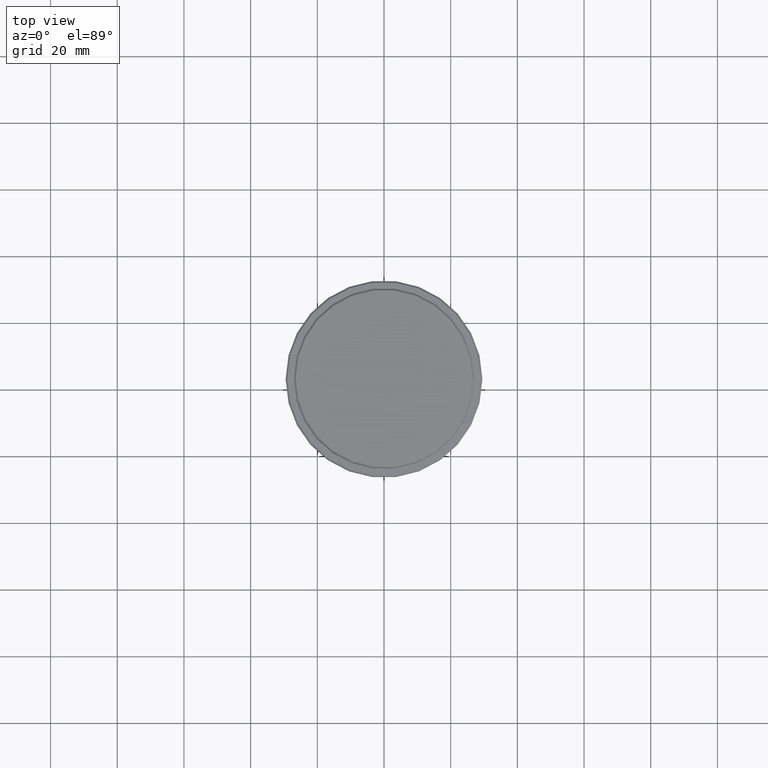
[diagram: clean part render]
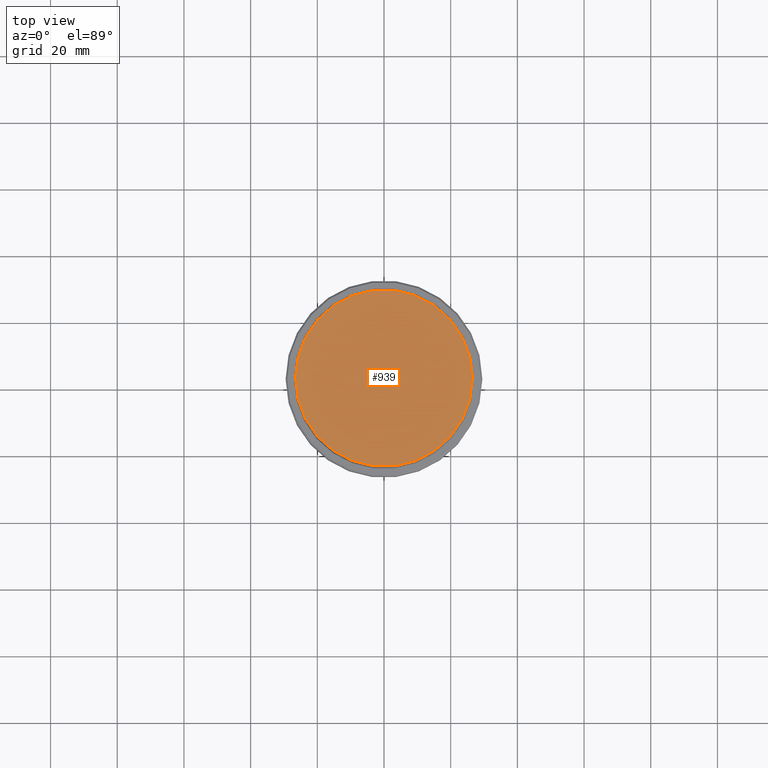
[diagram: same view with one face highlighted and labeled with its STEP entity id]
A machine part, top view. The second image highlights one B-rep face of the part: STEP entity #939.
In plain terms, the highlighted planar face has unit normal (0, -0, 1).
Its self-contained STEP definition (entity closure, byte-faithful):
#108 = AXIS2_PLACEMENT_3D ( 'NONE', #501, #406, #289 ) ;
#155 = DIRECTION ( 'NONE',  ( 1.000000000000000000, 0.000000000000000000, 0.000000000000000000 ) ) ;
#217 = CARTESIAN_POINT ( 'NONE',  ( 0.000000000000000000, 0.000000000000000000, 0.000000000000000000 ) ) ;
#289 = DIRECTION ( 'NONE',  ( 1.000000000000000000, 0.000000000000000000, 0.000000000000000000 ) ) ;
#313 = DIRECTION ( 'NONE',  ( 1.000000000000000000, 0.000000000000000000, 0.000000000000000000 ) ) ;
#402 = CARTESIAN_POINT ( 'NONE',  ( 0.000000000000000000, 0.000000000000000000, 0.000000000000000000 ) ) ;
#406 = DIRECTION ( 'NONE',  ( -0.000000000000000000, -0.000000000000000000, 1.000000000000000000 ) ) ;
#422 = DIRECTION ( 'NONE',  ( 0.000000000000000000, -0.000000000000000000, 1.000000000000000000 ) ) ;
#429 = PLANE ( 'NONE',  #509 ) ;
#437 = CARTESIAN_POINT ( 'NONE',  ( -26.50000000000002487, 0.000000000000000000, 0.000000000000000000 ) ) ;
#480 = VERTEX_POINT ( 'NONE', #901 ) ;
#501 = CARTESIAN_POINT ( 'NONE',  ( 0.000000000000000000, 0.000000000000000000, 0.000000000000000000 ) ) ;
#509 = AXIS2_PLACEMENT_3D ( 'NONE', #217, #422, #313 ) ;
#524 = EDGE_CURVE ( 'NONE', #480, #565, #742, .T. ) ;
#565 = VERTEX_POINT ( 'NONE', #437 ) ;
#636 = ORIENTED_EDGE ( 'NONE', *, *, #524, .T. ) ;
#638 = ORIENTED_EDGE ( 'NONE', *, *, #1301, .T. ) ;
#742 = CIRCLE ( 'NONE', #108, 26.50000000000002487 ) ;
#901 = CARTESIAN_POINT ( 'NONE',  ( 26.50000000000002487, 3.275930187719171524E-15, 0.000000000000000000 ) ) ;
#939 = ADVANCED_FACE ( 'NONE', ( #981 ), #429, .T. ) ;
#981 = FACE_OUTER_BOUND ( 'NONE', #1408, .T. ) ;
#1114 = AXIS2_PLACEMENT_3D ( 'NONE', #402, #1258, #155 ) ;
#1157 = CIRCLE ( 'NONE', #1114, 26.50000000000002487 ) ;
#1258 = DIRECTION ( 'NONE',  ( -0.000000000000000000, -0.000000000000000000, 1.000000000000000000 ) ) ;
#1301 = EDGE_CURVE ( 'NONE', #565, #480, #1157, .T. ) ;
#1408 = EDGE_LOOP ( 'NONE', ( #638, #636 ) ) ;